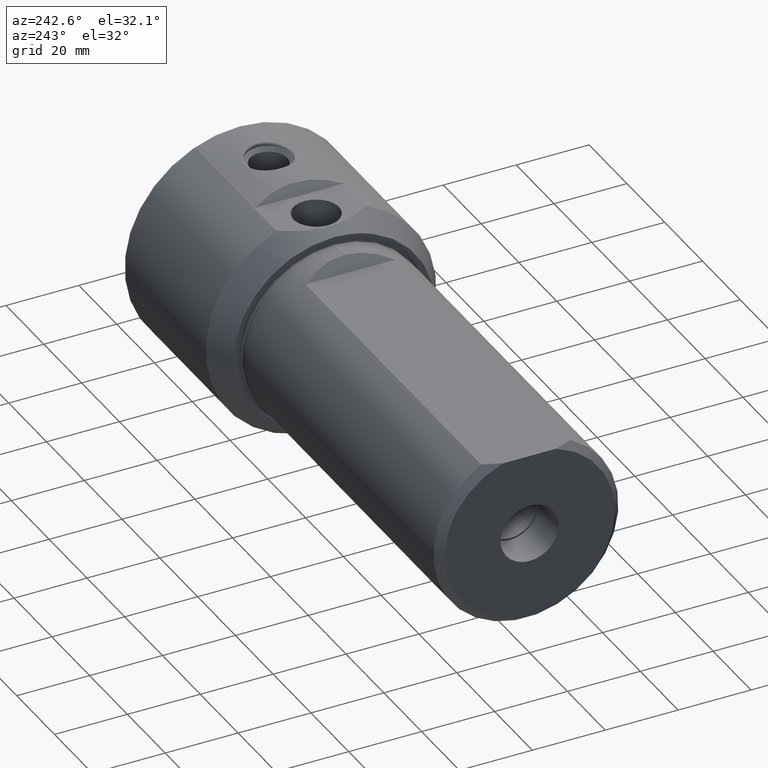
[diagram: clean part render]
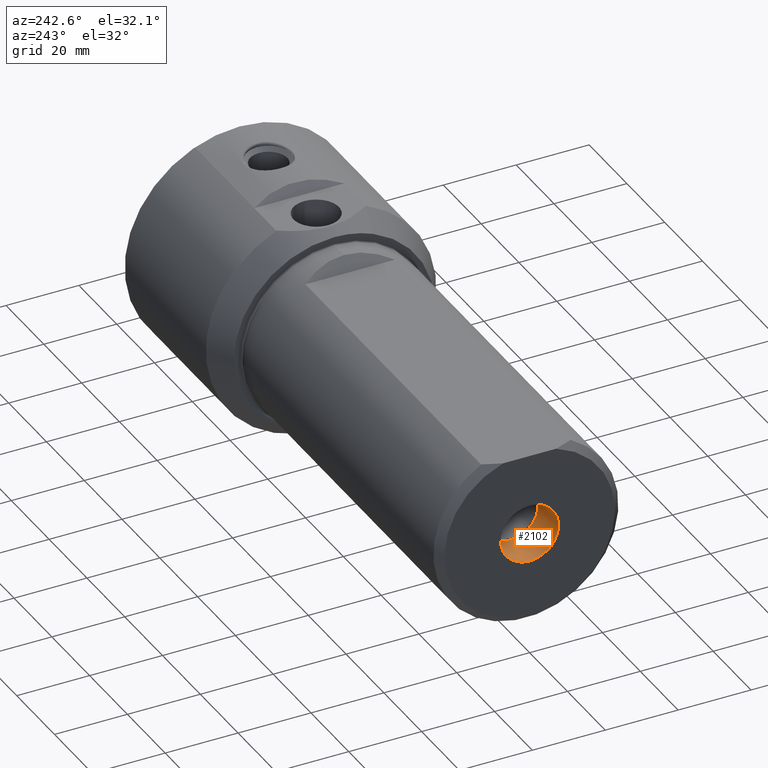
[diagram: same view with one face highlighted and labeled with its STEP entity id]
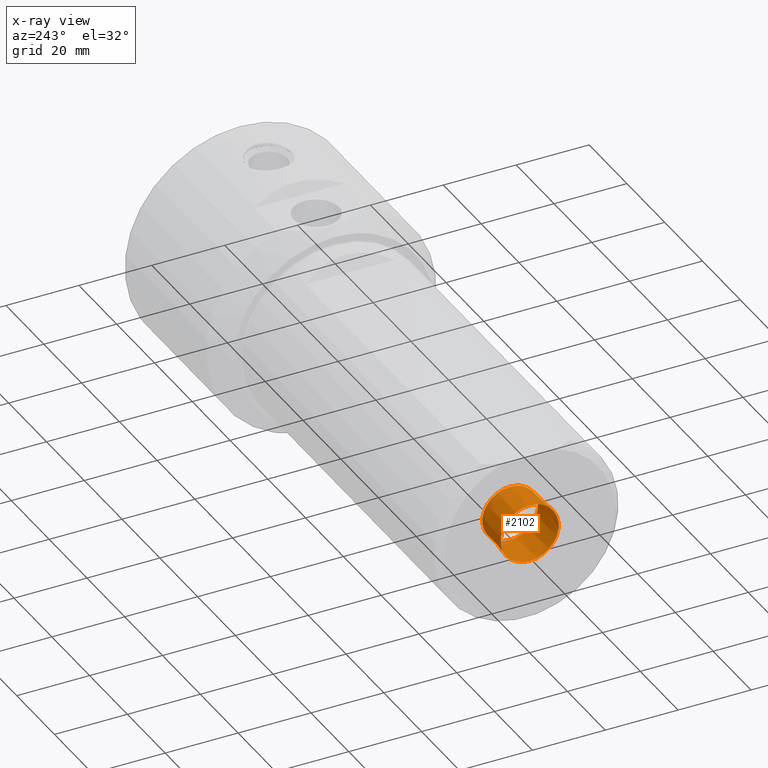
[diagram: x-ray of the same camera — body ghosted, the highlighted face saturated]
A machine part, auxiliary view. The second image highlights one B-rep face of the part: STEP entity #2102.
The next image is the same camera in x-ray: the body ghosted, the highlighted face saturated — about 0% of this face is hidden behind the body in this view.
In plain terms, the highlighted conical surface has half-angle 1.715 deg.
Its self-contained STEP definition (entity closure, byte-faithful):
#31 = DIRECTION ( 'NONE',  ( -1.000000000000000000, -0.0000000000000000000, -0.0000000000000000000 ) ) ;
#344 = ORIENTED_EDGE ( 'NONE', *, *, #1153, .F. ) ;
#386 = CARTESIAN_POINT ( 'NONE',  ( 0.0000000000000000000, 0.0000000000000000000, 0.0000000000000000000 ) ) ;
#897 = AXIS2_PLACEMENT_3D ( 'NONE', #2212, #2041, #2056 ) ;
#898 = VERTEX_POINT ( 'NONE', #1027 ) ;
#919 = AXIS2_PLACEMENT_3D ( 'NONE', #386, #31, #1636 ) ;
#1006 = DIRECTION ( 'NONE',  ( 0.0000000000000000000, 0.0000000000000000000, 1.000000000000000000 ) ) ;
#1027 = CARTESIAN_POINT ( 'NONE',  ( 0.0000000000000000000, 0.0000000000000000000, 7.963026999999999411 ) ) ;
#1153 = EDGE_CURVE ( 'NONE', #1784, #1784, #1167, .T. ) ;
#1167 = CIRCLE ( 'NONE', #1786, 7.653726978100578116 ) ;
#1449 = EDGE_LOOP ( 'NONE', ( #2053 ) ) ;
#1493 = CONICAL_SURFACE ( 'NONE', #919, 7.963026999999999411, 0.02993239667170272816 ) ;
#1636 = DIRECTION ( 'NONE',  ( 0.0000000000000000000, 0.0000000000000000000, 1.000000000000000000 ) ) ;
#1639 = FACE_BOUND ( 'NONE', #2091, .T. ) ;
#1784 = VERTEX_POINT ( 'NONE', #2129 ) ;
#1786 = AXIS2_PLACEMENT_3D ( 'NONE', #1912, #2069, #1006 ) ;
#1787 = CIRCLE ( 'NONE', #897, 7.963026999999999411 ) ;
#1888 = EDGE_CURVE ( 'NONE', #898, #898, #1787, .T. ) ;
#1912 = CARTESIAN_POINT ( 'NONE',  ( 10.33019999999999960, 0.0000000000000000000, 0.0000000000000000000 ) ) ;
#2041 = DIRECTION ( 'NONE',  ( -1.000000000000000000, -0.0000000000000000000, -0.0000000000000000000 ) ) ;
#2053 = ORIENTED_EDGE ( 'NONE', *, *, #1888, .T. ) ;
#2056 = DIRECTION ( 'NONE',  ( 0.0000000000000000000, 0.0000000000000000000, 1.000000000000000000 ) ) ;
#2069 = DIRECTION ( 'NONE',  ( -1.000000000000000000, -0.0000000000000000000, -0.0000000000000000000 ) ) ;
#2091 = EDGE_LOOP ( 'NONE', ( #344 ) ) ;
#2102 = ADVANCED_FACE ( 'NONE', ( #1639, #2335 ), #1493, .F. ) ;
#2129 = CARTESIAN_POINT ( 'NONE',  ( 10.33019999999999960, 0.0000000000000000000, 7.653726978100578116 ) ) ;
#2212 = CARTESIAN_POINT ( 'NONE',  ( 0.0000000000000000000, 0.0000000000000000000, 0.0000000000000000000 ) ) ;
#2335 = FACE_OUTER_BOUND ( 'NONE', #1449, .T. ) ;